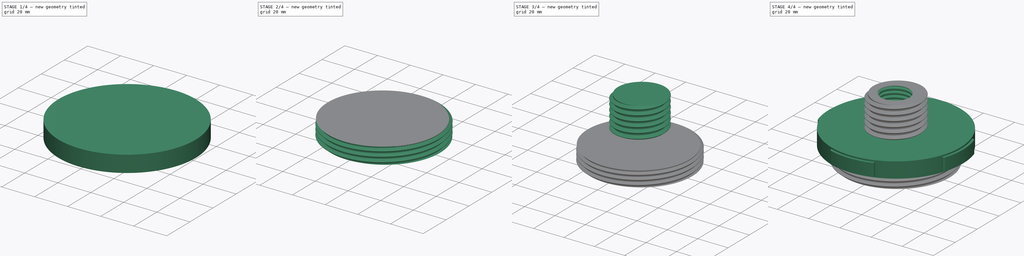
[diagram: build sequence overview — one tinted view per stage of 4, left to right]
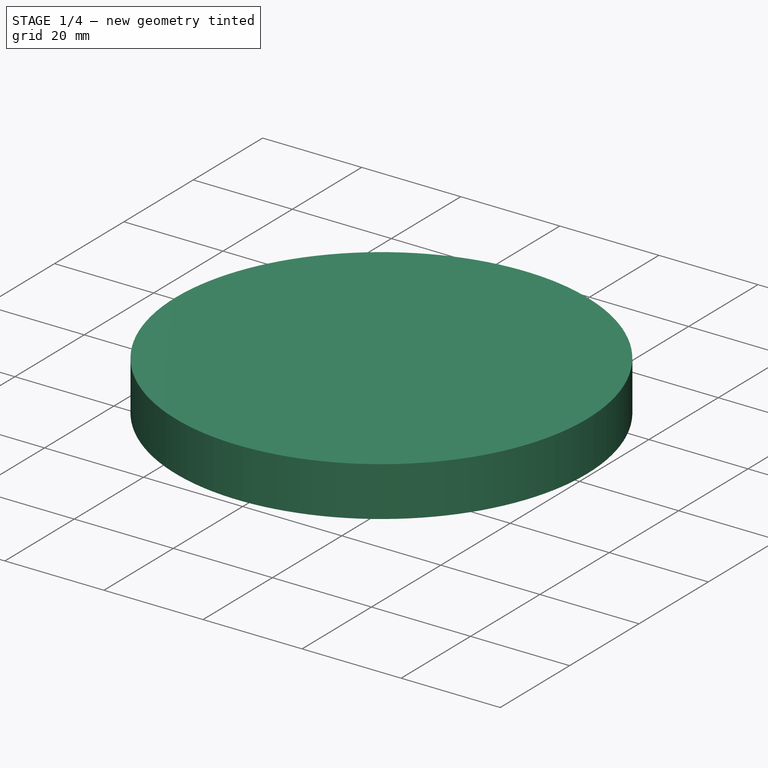
[diagram: stage 1 of 4 — iso view after this stage's code; geometry added in this stage tinted green]
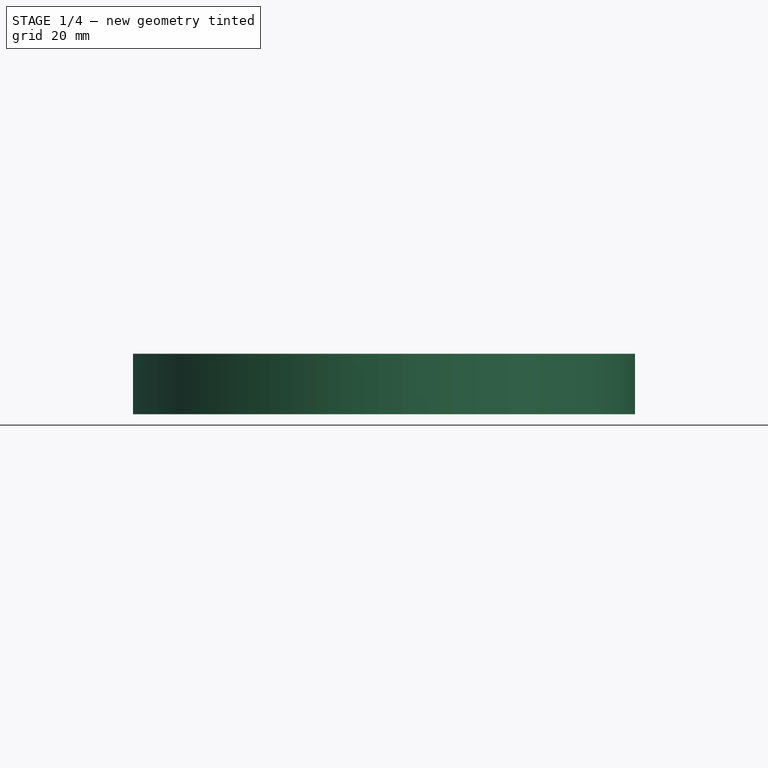
[diagram: stage 1 of 4 — front view after this stage's code; geometry added in this stage tinted green]
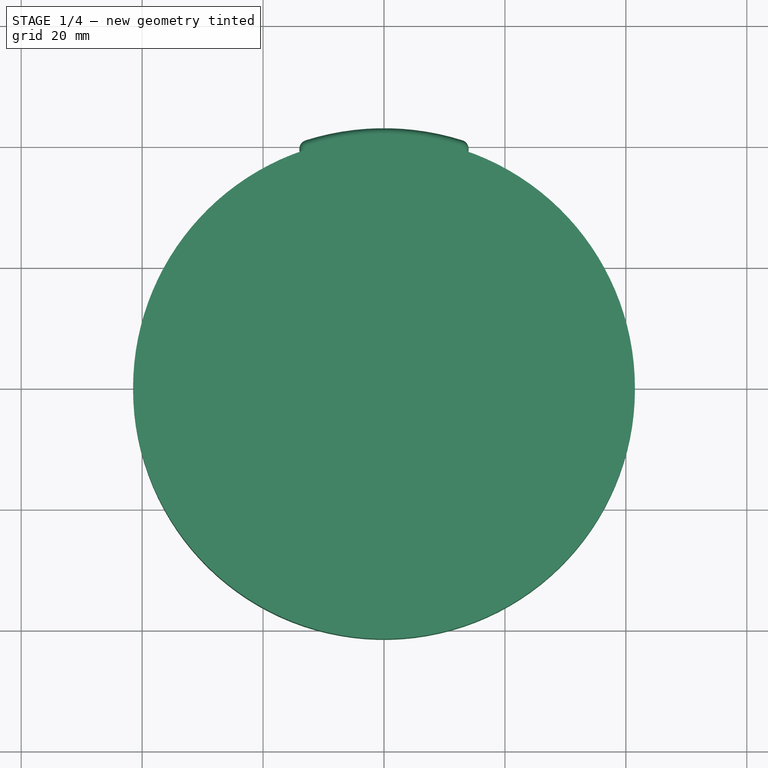
[diagram: stage 1 of 4 — top view after this stage's code; geometry added in this stage tinted green]
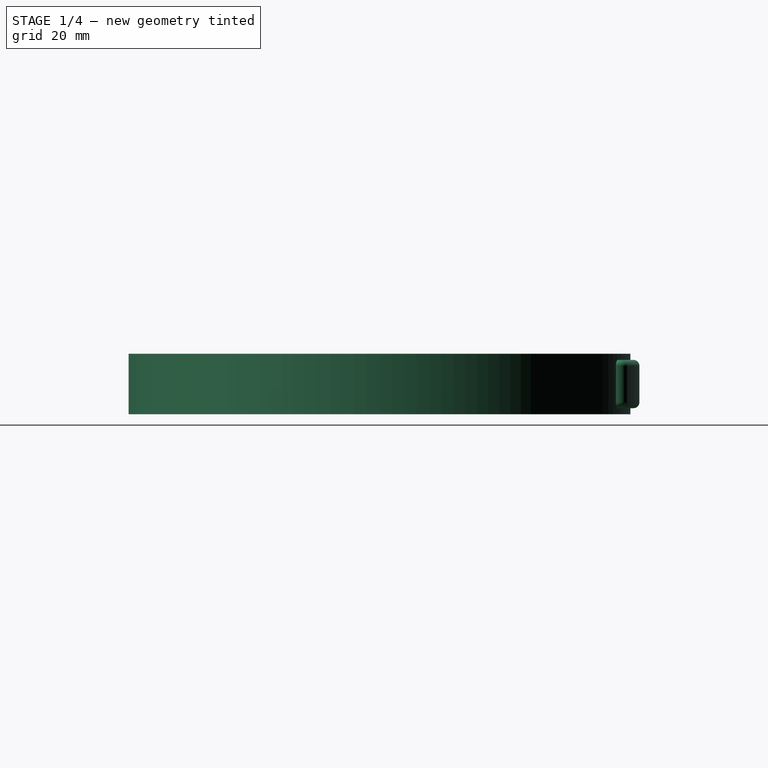
[diagram: stage 1 of 4 — right view after this stage's code; geometry added in this stage tinted green]
FCSTD DOCUMENT  (FreeCAD 1.0RUnknown)
Label: lesson48-fasteners-PDwb
License: All rights reserved
LicenseURL: https://en.wikipedia.org/wiki/All_rights_reserved
objects: Sketcher::SketchObject×5, PartDesign::Body×3, PartDesign::Pad×2, Part::FeaturePython×2, PartDesign::FeatureBase×2, PartDesign::Fillet×1, PartDesign::PolarPattern×1, PartDesign::Boolean×1, PartDesign::Hole×1, PartDesign::Pocket×1
note: 38 computed .brp shape members not serialized (recipe doc carries the construction recipe); baked Part::Feature solids carry a one-line shape summary decoded from their .brp

FEATURE [Sketcher::SketchObject] Sketch
  ArcFitTolerance = 1e-06
  AttachmentSupport = -> [XY_Plane]
  FullyConstrained = true
  MakeInternals = false
  MapMode = 5
  sketch-geometry (1):
    g0: Circle CenterX=0 CenterY=0 CenterZ=0 NormalX=0 NormalY=0 NormalZ=1 AngleXU=0 Radius=41.5
  constraints (2):
    c: Coincident(g0,g-1)
    c: Diameter(g0) = 83
FEATURE [PartDesign::Pad] Pad
  Direction = (0,0,1)
  Length = 10
  Length2 = 10
  Profile = -> Sketch
  ReferenceAxis = -> Sketch [N_Axis]
  Refine = true
  Suppressed = false
  Type = 0
FEATURE [Sketcher::SketchObject] Sketch001
  ArcFitTolerance = 1e-06
  AttachmentOffset = pos=(0,0,-1) rot=(0,0,1;0rad)
  AttachmentSupport = -> [Pad]
  ExternalGeometry = -> [Pad]
  FullyConstrained = true
  MakeInternals = false
  MapMode = 5
  Placement = pos=(0,0,9) rot=(0,0,1;0rad)
  sketch-geometry (4):
    g0: ArcOfCircle CenterX=0 CenterY=0 CenterZ=0 NormalX=0 NormalY=0 NormalZ=1 AngleXU=0 Radius=43 StartAngle=1.26484 EndAngle=1.87675
    g1: ArcOfCircle CenterX=0 CenterY=0 CenterZ=0 NormalX=0 NormalY=0 NormalZ=1 AngleXU=0 Radius=41.5 StartAngle=1.22869 EndAngle=1.9129
    g2: ArcOfCircle CenterX=-12.5 CenterY=39.5727 CenterZ=0 NormalX=0 NormalY=0 NormalZ=1 AngleXU=0 Radius=1.5 StartAngle=1.87675 EndAngle=3.46562
    g3: ArcOfCircle CenterX=12.5 CenterY=39.5727 CenterZ=0 NormalX=0 NormalY=0 NormalZ=1 AngleXU=0 Radius=1.5 StartAngle=5.95916 EndAngle=7.54803
  constraints (11):
    c: Coincident(g0,g-1)
    c: Coincident(g1,g0)
    c: Coincident(g2,g1)
    c: Coincident(g3,g1)
    c: Tangent(g2,g0) = -1.5708
    c: Tangent(g3,g0) = -1.5708
    c: PointOnObject(g2,g-3)
    c: PointOnObject(g1,g-3)
    c: Symmetric(g2,g3,g-2)
    c: Radius(g2) = 1.5
    c: Distance(g3,g2) = 25
FEATURE [PartDesign::Pad] Pad001
  BaseFeature = -> Pad
  Direction = (0,0,1)
  Length = 8
  Length2 = 10
  Profile = -> Sketch001
  ReferenceAxis = -> Sketch001 [N_Axis]
  Refine = true
  Reversed = true
  Suppressed = false
  Type = 0
FEATURE [PartDesign::Fillet] Fillet
  Base = -> Pad001 [Edge9,Edge14]
  BaseFeature = -> Pad001
  Radius = 1
  Refine = true
  SupportTransform = false
  Suppressed = false
  UseAllEdges = false
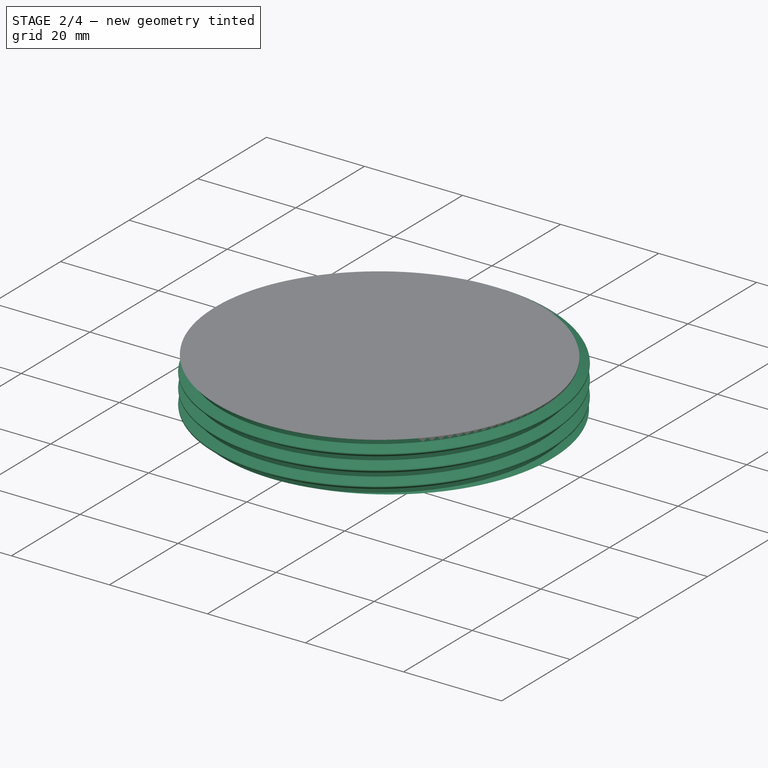
[diagram: stage 2 of 4 — iso view after this stage's code; geometry added in this stage tinted green]
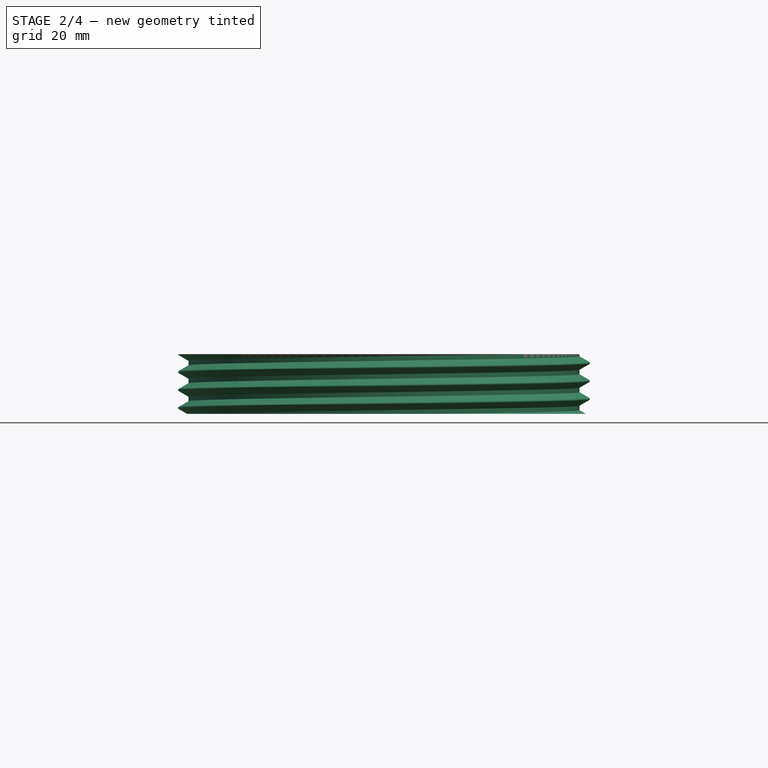
[diagram: stage 2 of 4 — front view after this stage's code; geometry added in this stage tinted green]
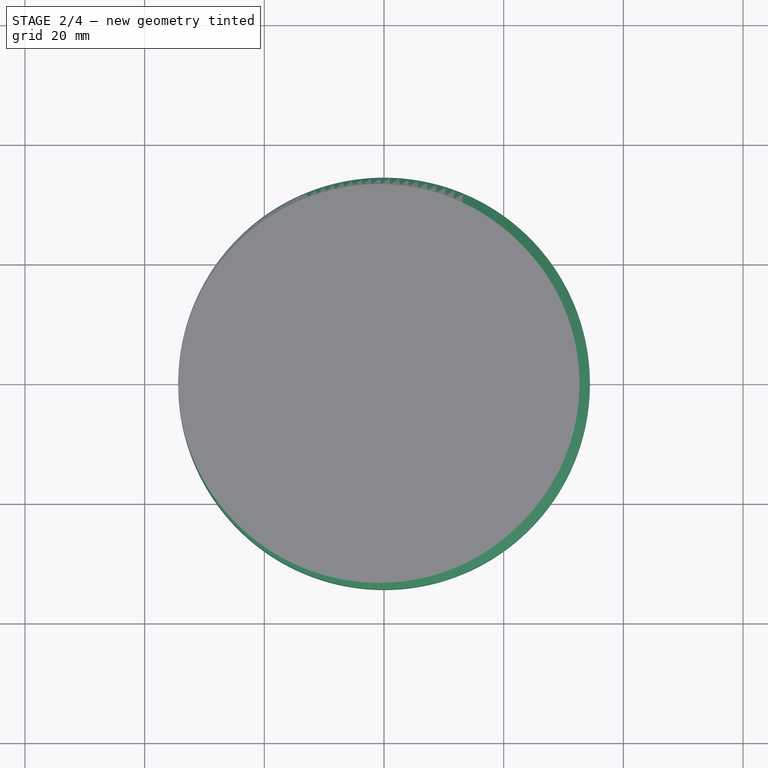
[diagram: stage 2 of 4 — top view after this stage's code; geometry added in this stage tinted green]
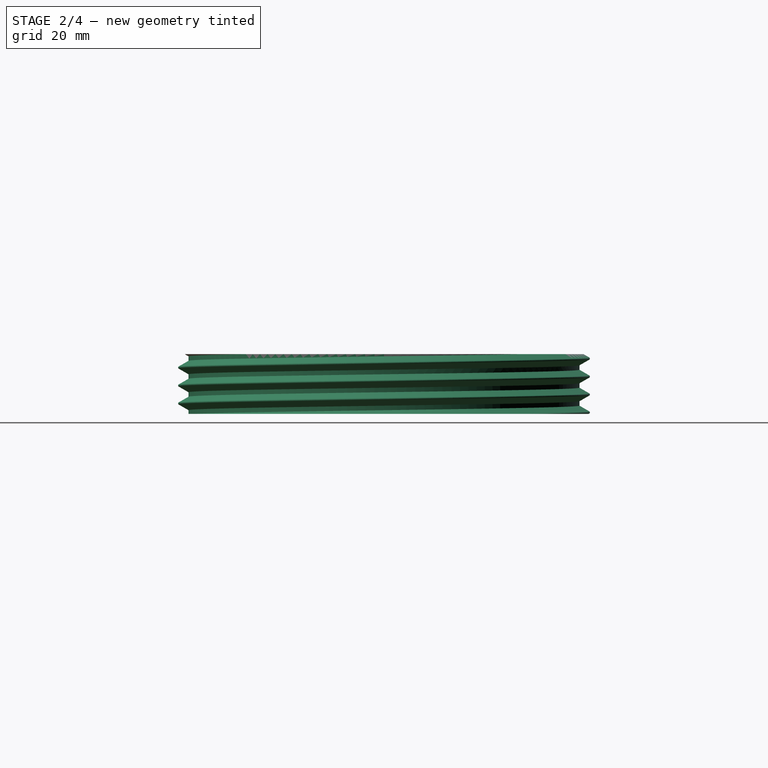
[diagram: stage 2 of 4 — right view after this stage's code; geometry added in this stage tinted green]
FEATURE [PartDesign::PolarPattern] PolarPattern
  Angle = 360
  Axis = -> Z_Axis
  BaseFeature = -> Fillet
  Mode = 0
  Occurrences = 4
  Offset = 120
  Originals = -> [Fillet,Pad001]
  Refine = true
  Suppressed = false
  TransformMode = 0
FEATURE [Part::FeaturePython] ThreadedRod001  label="68.58x10-ThreadedRod"  # WARN: FeaturePython — macro-defined, semantics opaque (R4)
  BaseObject = -> Body [Sketch003.Edge1]
  Diameter = 33
  DiameterCustom = 68.58
  Invert = true
  LeftHanded = false
  Length = 10
  MatchOuter = true
  OffsetAngle = 0
  PitchCustom = 3
  Thread = true
  Type = 3
FEATURE [PartDesign::FeatureBase] Clone001
  BaseFeature = -> ThreadedRod001
  Suppressed = false
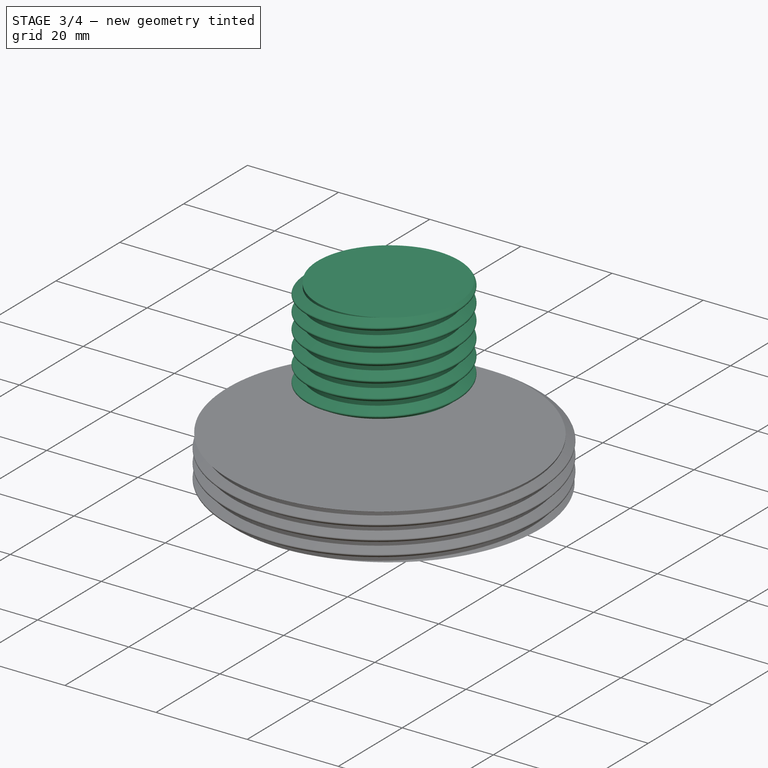
[diagram: stage 3 of 4 — iso view after this stage's code; geometry added in this stage tinted green]
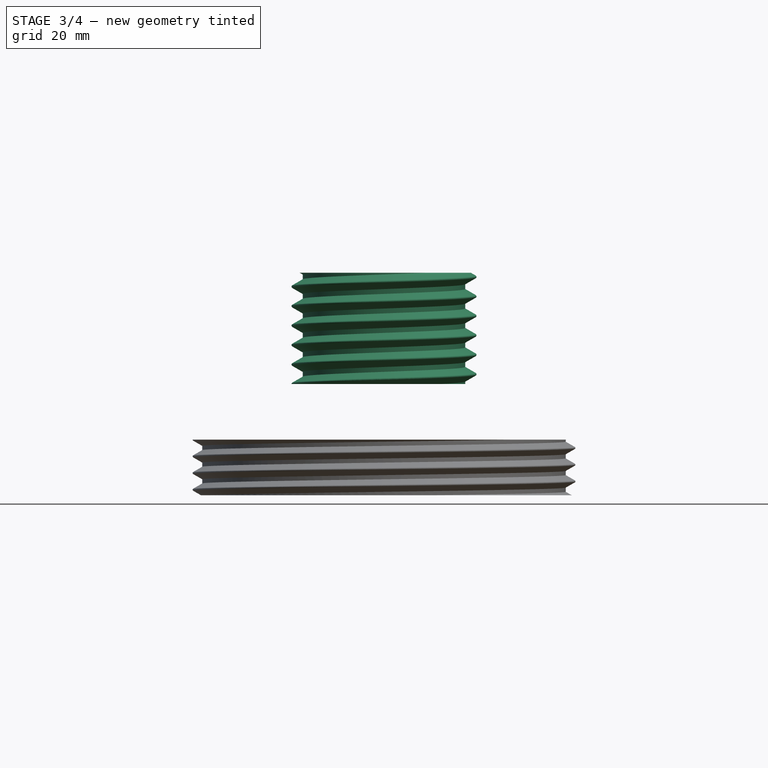
[diagram: stage 3 of 4 — front view after this stage's code; geometry added in this stage tinted green]
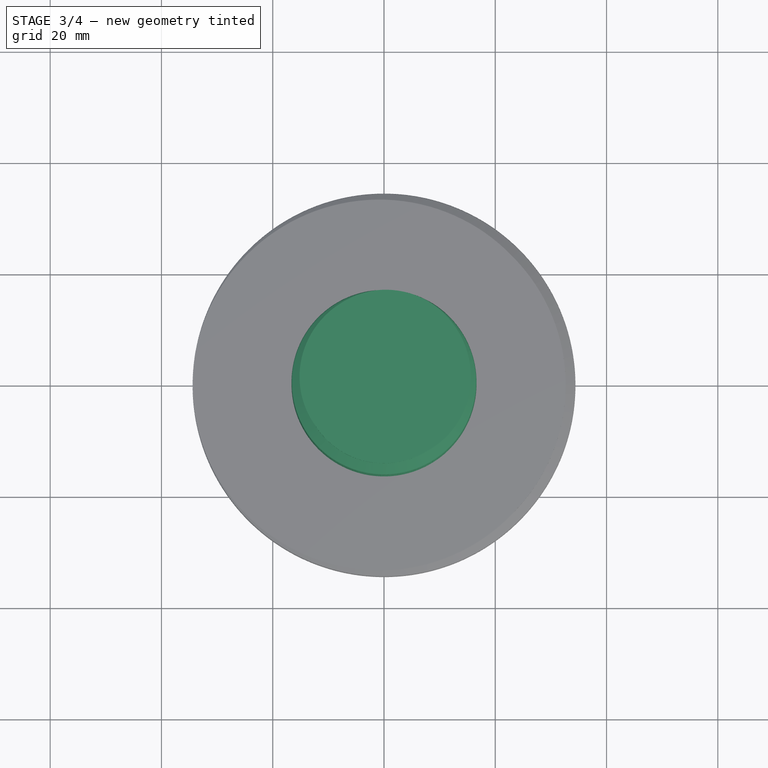
[diagram: stage 3 of 4 — top view after this stage's code; geometry added in this stage tinted green]
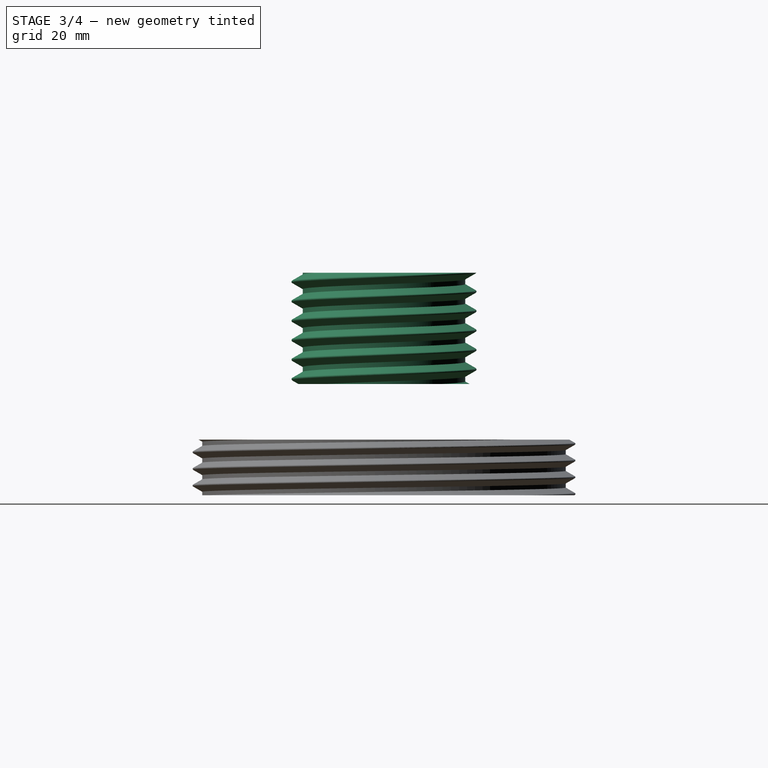
[diagram: stage 3 of 4 — right view after this stage's code; geometry added in this stage tinted green]
FEATURE [Sketcher::SketchObject] Sketch002
  ArcFitTolerance = 1e-06
  AttachmentSupport = -> [PolarPattern]
  FullyConstrained = true
  MakeInternals = false
  MapMode = 5
  Placement = pos=(0,0,10) rot=(0,0,1;0rad)
  sketch-geometry (1):
    g0: Circle CenterX=0 CenterY=0 CenterZ=0 NormalX=0 NormalY=0 NormalZ=1 AngleXU=0 Radius=17.5
  constraints (2):
    c: Coincident(g0,g-1)
    c: Diameter(g0) = 35
FEATURE [Sketcher::SketchObject] Sketch003
  ArcFitTolerance = 1e-06
  AttachmentSupport = -> [PolarPattern]
  FullyConstrained = true
  MakeInternals = false
  MapMode = 5
  Placement = pos=(0,0,0) rot=(1,0,0;3.14159rad)
  sketch-geometry (1):
    g0: Circle CenterX=0 CenterY=0 CenterZ=0 NormalX=0 NormalY=0 NormalZ=1 AngleXU=0 Radius=34.29
  constraints (2):
    c: Coincident(g0,g-1)
    c: Diameter(g0) = 68.58
FEATURE [PartDesign::Body] Body  label="MidBody"
  AllowCompound = false
  Group = -> [Sketch,Pad,Sketch001,Pad001,Fillet,PolarPattern,Sketch002,Sketch003]
  Origin = -> Origin
  Tip = -> PolarPattern
FEATURE [Part::FeaturePython] ThreadedRod  label="(M33)x20-ThreadedRod"  # WARN: FeaturePython — macro-defined, semantics opaque (R4)
  BaseObject = -> Body [Sketch002.Edge1]
  Diameter = 20
  DiameterCustom = 6
  Invert = true
  LeftHanded = false
  Length = 20
  MatchOuter = true
  OffsetAngle = 0
  PitchCustom = 1
  Placement = pos=(0,0,10) rot=(-1,0,0;3.14159rad)
  Thread = true
  Type = 2
FEATURE [PartDesign::FeatureBase] Clone
  BaseFeature = -> ThreadedRod
  Placement = pos=(0,0,10) rot=(-1,0,0;3.14159rad)
  Suppressed = false
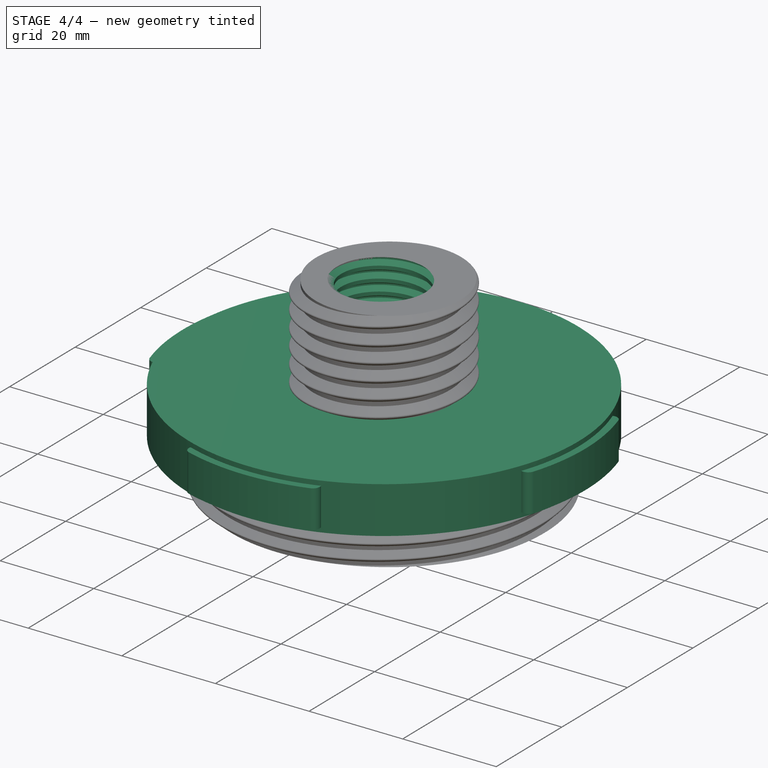
[diagram: stage 4 of 4 — iso view after this stage's code; geometry added in this stage tinted green]
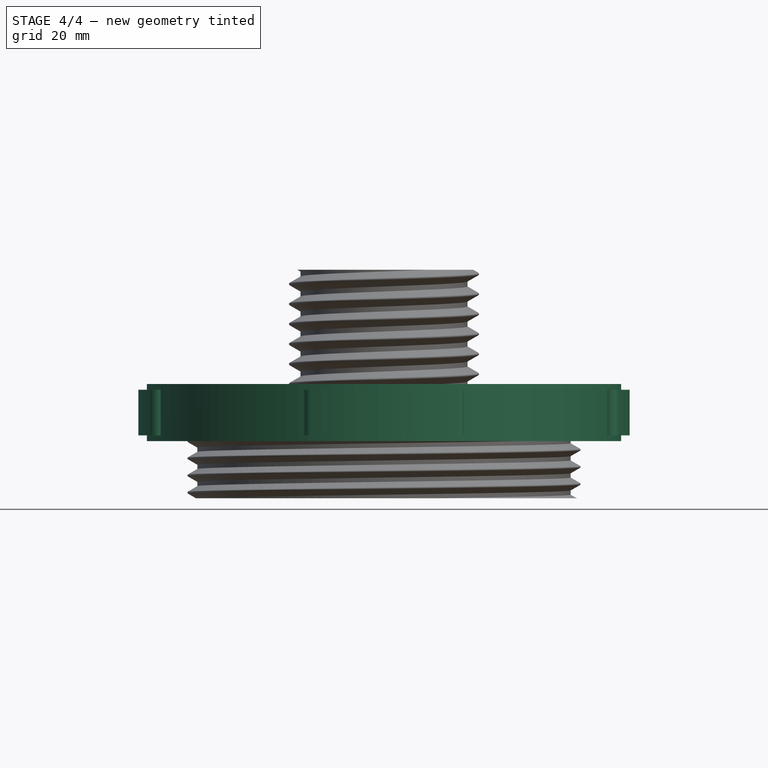
[diagram: stage 4 of 4 — front view after this stage's code; geometry added in this stage tinted green]
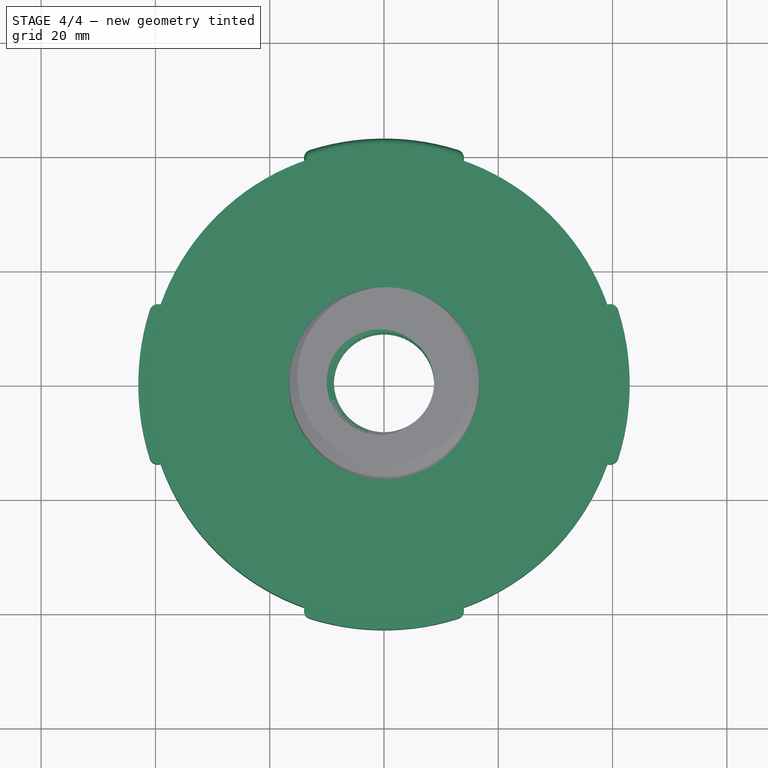
[diagram: stage 4 of 4 — top view after this stage's code; geometry added in this stage tinted green]
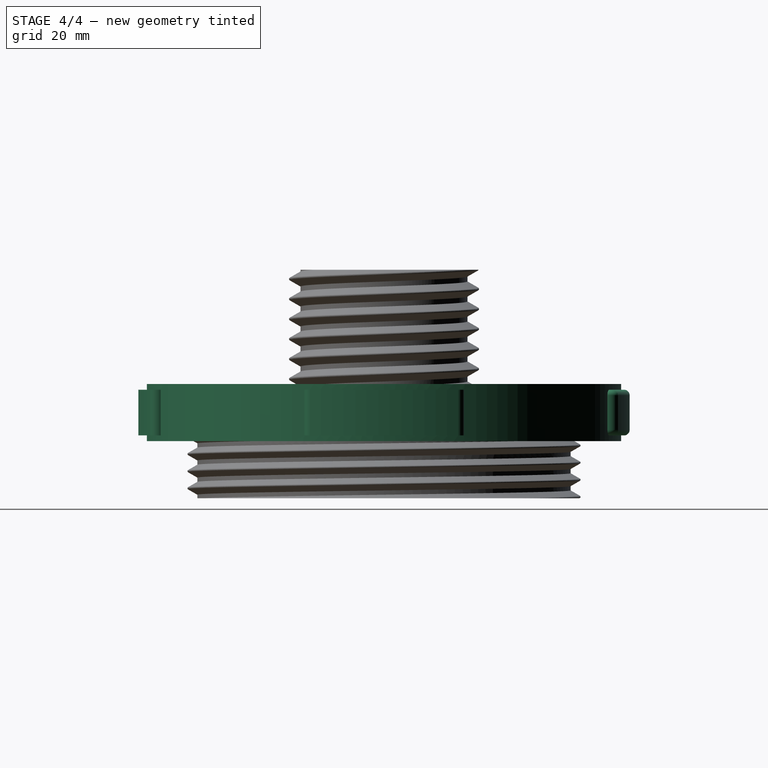
[diagram: stage 4 of 4 — right view after this stage's code; geometry added in this stage tinted green]
FEATURE [PartDesign::Body] Body002  label="BottomThreadBody"
  AllowCompound = false
  Group = -> [Clone001]
  Origin = -> Origin002
  Tip = -> Clone001
FEATURE [PartDesign::Boolean] Boolean
  BaseFeature = -> Clone
  Group = -> [Body,Body002]
  Refine = true
  Suppressed = false
  Type = 0
  UsePlacement = true
FEATURE [PartDesign::Hole] Hole
  BaseFeature = -> Boolean
  CustomThreadClearance = 0
  Depth = 30
  DepthType = 0
  Diameter = 17.542
  DrillForDepth = false
  DrillPoint = 1
  DrillPointAngle = 118
  HoleCutCountersinkAngle = 90
  HoleCutCustomValues = false
  HoleCutDepth = 0
  HoleCutDiameter = 17.6
  HoleCutType = 0
  ModelThread = true
  Profile = -> Boolean [Face1]
  Suppressed = false
  Tapered = false
  TaperedAngle = 90
  ThreadClass = 0
  ThreadDepth = 30
  ThreadDepthType = 0
  ThreadDirection = 0
  ThreadFit = 0
  ThreadSize = 24
  ThreadType = 1
  Threaded = true
  UseCustomThreadClearance = false
FEATURE [Sketcher::SketchObject] Sketch004
  ArcFitTolerance = 1e-06
  AttachmentSupport = -> [Hole]
  FullyConstrained = true
  MakeInternals = false
  MapMode = 5
  Placement = pos=(0,0,-10) rot=(1,0,0;3.14159rad)
  sketch-geometry (1):
    g0: Circle CenterX=0 CenterY=0 CenterZ=0 NormalX=0 NormalY=0 NormalZ=1 AngleXU=0 Radius=31
  constraints (2):
    c: Diameter(g0) = 62
    c: Coincident(g0,g-1)
FEATURE [PartDesign::Pocket] Pocket
  BaseFeature = -> Hole
  Direction = (0,0,1)
  Length = 12
  Length2 = 5
  Profile = -> Sketch004
  ReferenceAxis = -> Sketch004 [N_Axis]
  Refine = true
  Suppressed = false
  Type = 0
FEATURE [PartDesign::Body] Body001  label="TopThreadBody"
  AllowCompound = false
  Group = -> [Clone,Boolean,Hole,Sketch004,Pocket]
  Origin = -> Origin001
  Tip = -> Pocket
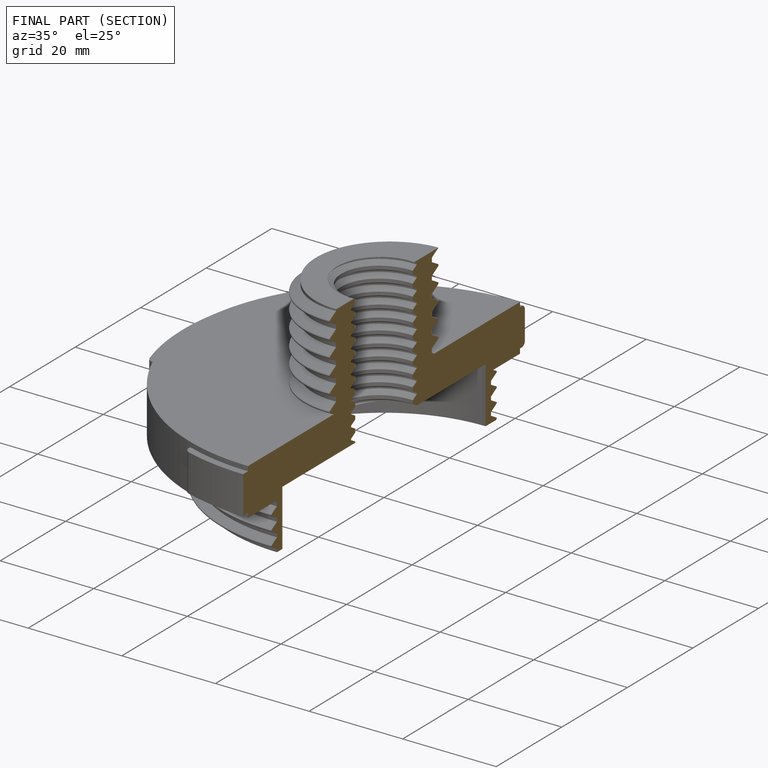
[diagram: finished part — half-section view (interior)]
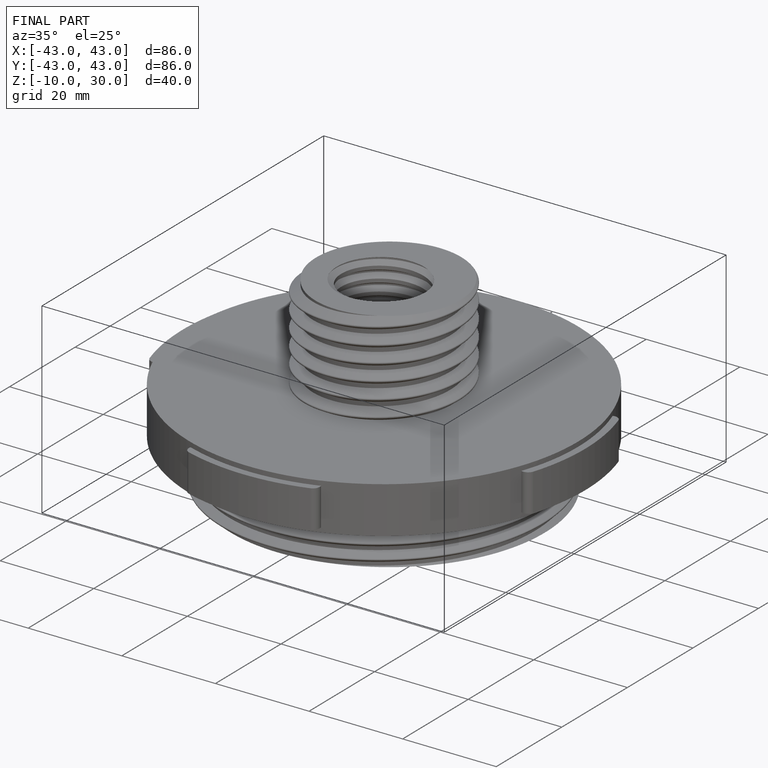
[diagram: finished part — iso view with bounding-box wireframe]
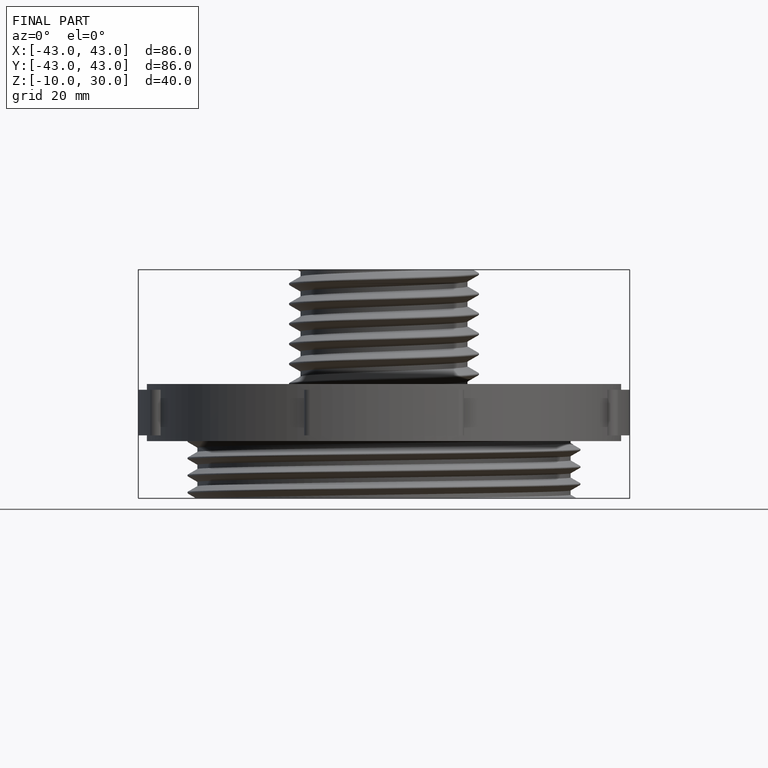
[diagram: finished part — front view with bounding-box wireframe]
